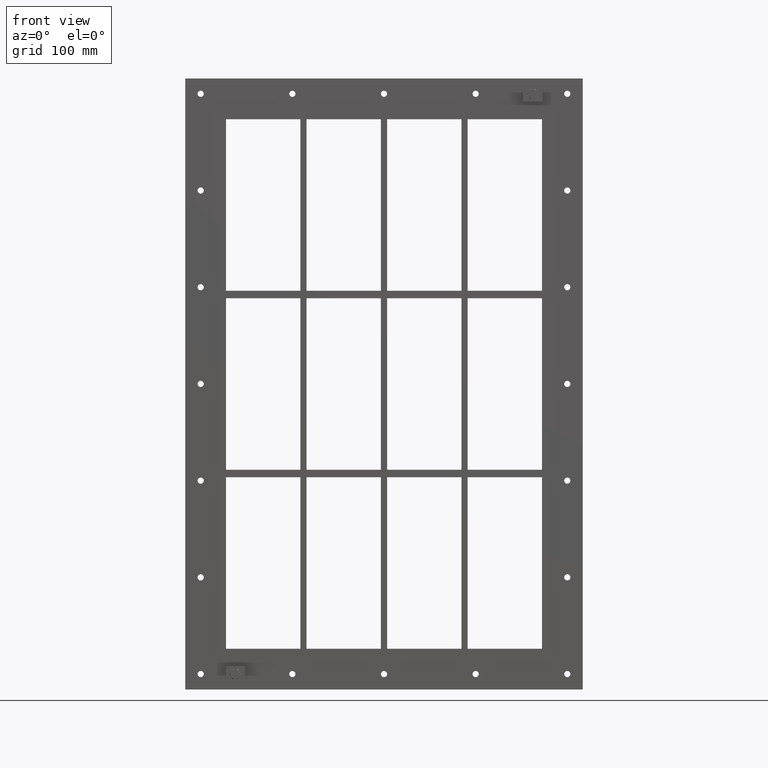
[diagram: clean part render]
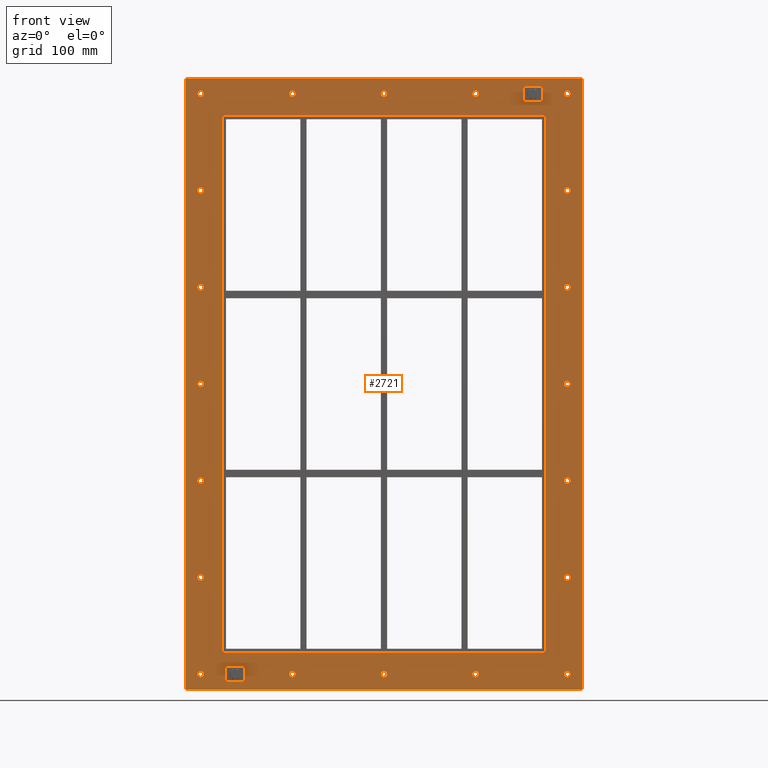
[diagram: same view with one face highlighted and labeled with its STEP entity id]
A machine part, front view. The second image highlights one B-rep face of the part: STEP entity #2721.
In plain terms, the highlighted planar face has unit normal (0, 1, 0).
Its self-contained STEP definition (entity closure, byte-faithful):
#84=CARTESIAN_POINT('',(-292.00000000000011,0.0,-470.00000000000011));
#85=VERTEX_POINT('',#84);
#86=CARTESIAN_POINT('',(-297.00000000000011,0.0,-470.00000000000011));
#87=DIRECTION('',(0.0,1.0,0.0));
#88=DIRECTION('',(1.0,0.0,0.0));
#89=AXIS2_PLACEMENT_3D('',#86,#87,#88);
#90=CIRCLE('',#89,5.0);
#91=EDGE_CURVE('',#85,#85,#90,.T.);
#112=CARTESIAN_POINT('',(301.99999999999994,0.0,-313.30000000000013));
#113=VERTEX_POINT('',#112);
#114=CARTESIAN_POINT('',(296.99999999999994,0.0,-313.30000000000013));
#115=DIRECTION('',(0.0,1.0,0.0));
#116=DIRECTION('',(1.0,0.0,0.0));
#117=AXIS2_PLACEMENT_3D('',#114,#115,#116);
#118=CIRCLE('',#117,5.0);
#119=EDGE_CURVE('',#113,#113,#118,.T.);
#140=CARTESIAN_POINT('',(-292.00000000000011,0.0,-313.30000000000013));
#141=VERTEX_POINT('',#140);
#142=CARTESIAN_POINT('',(-297.00000000000011,0.0,-313.30000000000013));
#143=DIRECTION('',(0.0,1.0,0.0));
#144=DIRECTION('',(1.0,0.0,0.0));
#145=AXIS2_PLACEMENT_3D('',#142,#143,#144);
#146=CIRCLE('',#145,5.0);
#147=EDGE_CURVE('',#141,#141,#146,.T.);
#168=CARTESIAN_POINT('',(301.99999999999994,0.0,-156.60000000000016));
#169=VERTEX_POINT('',#168);
#170=CARTESIAN_POINT('',(296.99999999999994,0.0,-156.60000000000016));
#171=DIRECTION('',(0.0,1.0,0.0));
#172=DIRECTION('',(1.0,0.0,0.0));
#173=AXIS2_PLACEMENT_3D('',#170,#171,#172);
#174=CIRCLE('',#173,5.0);
#175=EDGE_CURVE('',#169,#169,#174,.T.);
#196=CARTESIAN_POINT('',(-292.00000000000011,0.0,-156.60000000000016));
#197=VERTEX_POINT('',#196);
#198=CARTESIAN_POINT('',(-297.00000000000011,0.0,-156.60000000000016));
#199=DIRECTION('',(0.0,1.0,0.0));
#200=DIRECTION('',(1.0,0.0,0.0));
#201=AXIS2_PLACEMENT_3D('',#198,#199,#200);
#202=CIRCLE('',#201,5.0);
#203=EDGE_CURVE('',#197,#197,#202,.T.);
#224=CARTESIAN_POINT('',(301.99999999999994,0.0,0.099999999999856));
#225=VERTEX_POINT('',#224);
#226=CARTESIAN_POINT('',(296.99999999999994,0.0,0.099999999999856));
#227=DIRECTION('',(0.0,1.0,0.0));
#228=DIRECTION('',(1.0,0.0,0.0));
#229=AXIS2_PLACEMENT_3D('',#226,#227,#228);
#230=CIRCLE('',#229,5.0);
#231=EDGE_CURVE('',#225,#225,#230,.T.);
#252=CARTESIAN_POINT('',(-292.00000000000011,0.0,0.099999999999856));
#253=VERTEX_POINT('',#252);
#254=CARTESIAN_POINT('',(-297.00000000000011,0.0,0.099999999999856));
#255=DIRECTION('',(0.0,1.0,0.0));
#256=DIRECTION('',(1.0,0.0,0.0));
#257=AXIS2_PLACEMENT_3D('',#254,#255,#256);
#258=CIRCLE('',#257,5.0);
#259=EDGE_CURVE('',#253,#253,#258,.T.);
#280=CARTESIAN_POINT('',(301.99999999999994,0.0,156.79999999999981));
#281=VERTEX_POINT('',#280);
#282=CARTESIAN_POINT('',(296.99999999999994,0.0,156.79999999999981));
#283=DIRECTION('',(0.0,1.0,0.0));
#284=DIRECTION('',(1.0,0.0,0.0));
#285=AXIS2_PLACEMENT_3D('',#282,#283,#284);
#286=CIRCLE('',#285,5.0);
#287=EDGE_CURVE('',#281,#281,#286,.T.);
#308=CARTESIAN_POINT('',(-292.00000000000011,0.0,156.79999999999981));
#309=VERTEX_POINT('',#308);
#310=CARTESIAN_POINT('',(-297.00000000000011,0.0,156.79999999999981));
#311=DIRECTION('',(0.0,1.0,0.0));
#312=DIRECTION('',(1.0,0.0,0.0));
#313=AXIS2_PLACEMENT_3D('',#310,#311,#312);
#314=CIRCLE('',#313,5.0);
#315=EDGE_CURVE('',#309,#309,#314,.T.);
#336=CARTESIAN_POINT('',(301.99999999999994,0.0,313.49999999999977));
#337=VERTEX_POINT('',#336);
#338=CARTESIAN_POINT('',(296.99999999999994,0.0,313.49999999999977));
#339=DIRECTION('',(0.0,1.0,0.0));
#340=DIRECTION('',(1.0,0.0,0.0));
#341=AXIS2_PLACEMENT_3D('',#338,#339,#340);
#342=CIRCLE('',#341,5.0);
#343=EDGE_CURVE('',#337,#337,#342,.T.);
#364=CARTESIAN_POINT('',(-292.00000000000011,0.0,313.49999999999977));
#365=VERTEX_POINT('',#364);
#366=CARTESIAN_POINT('',(-297.00000000000011,0.0,313.49999999999977));
#367=DIRECTION('',(0.0,1.0,0.0));
#368=DIRECTION('',(1.0,0.0,0.0));
#369=AXIS2_PLACEMENT_3D('',#366,#367,#368);
#370=CIRCLE('',#369,5.0);
#371=EDGE_CURVE('',#365,#365,#370,.T.);
#392=CARTESIAN_POINT('',(-143.50000000000011,0.0,470.19999999999982));
#393=VERTEX_POINT('',#392);
#394=CARTESIAN_POINT('',(-148.50000000000011,0.0,470.19999999999982));
#395=DIRECTION('',(0.0,1.0,0.0));
#396=DIRECTION('',(1.0,0.0,0.0));
#397=AXIS2_PLACEMENT_3D('',#394,#395,#396);
#398=CIRCLE('',#397,5.0);
#399=EDGE_CURVE('',#393,#393,#398,.T.);
#420=CARTESIAN_POINT('',(-143.50000000000017,0.0,-470.00000000000011));
#421=VERTEX_POINT('',#420);
#422=CARTESIAN_POINT('',(-148.50000000000017,0.0,-470.00000000000011));
#423=DIRECTION('',(0.0,1.0,0.0));
#424=DIRECTION('',(1.0,0.0,0.0));
#425=AXIS2_PLACEMENT_3D('',#422,#423,#424);
#426=CIRCLE('',#425,5.0);
#427=EDGE_CURVE('',#421,#421,#426,.T.);
#448=CARTESIAN_POINT('',(4.999999999999893,0.0,470.19999999999982));
#449=VERTEX_POINT('',#448);
#450=CARTESIAN_POINT('',(-1.065814E-013,0.0,470.19999999999982));
#451=DIRECTION('',(0.0,1.0,0.0));
#452=DIRECTION('',(1.0,0.0,0.0));
#453=AXIS2_PLACEMENT_3D('',#450,#451,#452);
#454=CIRCLE('',#453,5.0);
#455=EDGE_CURVE('',#449,#449,#454,.T.);
#476=CARTESIAN_POINT('',(4.999999999999858,0.0,-470.00000000000011));
#477=VERTEX_POINT('',#476);
#478=CARTESIAN_POINT('',(-1.421085E-013,0.0,-470.00000000000011));
#479=DIRECTION('',(0.0,1.0,0.0));
#480=DIRECTION('',(1.0,0.0,0.0));
#481=AXIS2_PLACEMENT_3D('',#478,#479,#480);
#482=CIRCLE('',#481,5.0);
#483=EDGE_CURVE('',#477,#477,#482,.T.);
#504=CARTESIAN_POINT('',(153.49999999999991,0.0,470.19999999999982));
#505=VERTEX_POINT('',#504);
#506=CARTESIAN_POINT('',(148.49999999999991,0.0,470.19999999999982));
#507=DIRECTION('',(0.0,1.0,0.0));
#508=DIRECTION('',(1.0,0.0,0.0));
#509=AXIS2_PLACEMENT_3D('',#506,#507,#508);
#510=CIRCLE('',#509,5.0);
#511=EDGE_CURVE('',#505,#505,#510,.T.);
#532=CARTESIAN_POINT('',(153.49999999999989,0.0,-470.00000000000011));
#533=VERTEX_POINT('',#532);
#534=CARTESIAN_POINT('',(148.49999999999989,0.0,-470.00000000000011));
#535=DIRECTION('',(0.0,1.0,0.0));
#536=DIRECTION('',(1.0,0.0,0.0));
#537=AXIS2_PLACEMENT_3D('',#534,#535,#536);
#538=CIRCLE('',#537,5.0);
#539=EDGE_CURVE('',#533,#533,#538,.T.);
#560=CARTESIAN_POINT('',(301.99999999999989,0.0,-470.00000000000011));
#561=VERTEX_POINT('',#560);
#562=CARTESIAN_POINT('',(296.99999999999989,0.0,-470.00000000000011));
#563=DIRECTION('',(0.0,1.0,0.0));
#564=DIRECTION('',(1.0,0.0,0.0));
#565=AXIS2_PLACEMENT_3D('',#562,#563,#564);
#566=CIRCLE('',#565,5.0);
#567=EDGE_CURVE('',#561,#561,#566,.T.);
#588=CARTESIAN_POINT('',(-292.00000000000011,0.0,470.19999999999982));
#589=VERTEX_POINT('',#588);
#590=CARTESIAN_POINT('',(-297.00000000000011,0.0,470.19999999999982));
#591=DIRECTION('',(0.0,1.0,0.0));
#592=DIRECTION('',(1.0,0.0,0.0));
#593=AXIS2_PLACEMENT_3D('',#590,#591,#592);
#594=CIRCLE('',#593,5.0);
#595=EDGE_CURVE('',#589,#589,#594,.T.);
#616=CARTESIAN_POINT('',(301.99999999999994,0.0,470.19999999999982));
#617=VERTEX_POINT('',#616);
#618=CARTESIAN_POINT('',(296.99999999999994,0.0,470.19999999999982));
#619=DIRECTION('',(0.0,1.0,0.0));
#620=DIRECTION('',(1.0,0.0,0.0));
#621=AXIS2_PLACEMENT_3D('',#618,#619,#620);
#622=CIRCLE('',#621,5.0);
#623=EDGE_CURVE('',#617,#617,#622,.T.);
#2552=CARTESIAN_POINT('',(-2.087274E-014,0.0,0.0));
#2553=DIRECTION('',(0.0,1.0,0.0));
#2554=DIRECTION('',(0.0,0.0,1.0));
#2555=AXIS2_PLACEMENT_3D('',#2552,#2553,#2554);
#2556=PLANE('',#2555);
#2557=CARTESIAN_POINT('',(-322.0,0.0,495.00000000000006));
#2558=VERTEX_POINT('',#2557);
#2559=CARTESIAN_POINT('',(321.99999999999994,0.0,495.00000000000006));
#2560=VERTEX_POINT('',#2559);
#2561=CARTESIAN_POINT('',(-322.0,0.0,495.00000000000006));
#2562=DIRECTION('',(1.0,0.0,0.0));
#2563=VECTOR('',#2562,644.0);
#2564=LINE('',#2561,#2563);
#2565=EDGE_CURVE('',#2558,#2560,#2564,.T.);
#2566=ORIENTED_EDGE('',*,*,#2565,.F.);
#2567=CARTESIAN_POINT('',(-322.0,0.0,-495.00000000000006));
#2568=VERTEX_POINT('',#2567);
#2569=CARTESIAN_POINT('',(-322.0,0.0,-495.00000000000006));
#2570=DIRECTION('',(0.0,0.0,1.0));
#2571=VECTOR('',#2570,990.00000000000011);
#2572=LINE('',#2569,#2571);
#2573=EDGE_CURVE('',#2568,#2558,#2572,.T.);
#2574=ORIENTED_EDGE('',*,*,#2573,.F.);
#2575=CARTESIAN_POINT('',(321.99999999999994,0.0,-495.00000000000006));
#2576=VERTEX_POINT('',#2575);
#2577=CARTESIAN_POINT('',(321.99999999999994,0.0,-495.00000000000006));
#2578=DIRECTION('',(-1.0,0.0,0.0));
#2579=VECTOR('',#2578,644.0);
#2580=LINE('',#2577,#2579);
#2581=EDGE_CURVE('',#2576,#2568,#2580,.T.);
#2582=ORIENTED_EDGE('',*,*,#2581,.F.);
#2583=CARTESIAN_POINT('',(321.99999999999994,0.0,495.00000000000006));
#2584=DIRECTION('',(0.0,0.0,-1.0));
#2585=VECTOR('',#2584,990.00000000000011);
#2586=LINE('',#2583,#2585);
#2587=EDGE_CURVE('',#2560,#2576,#2586,.T.);
#2588=ORIENTED_EDGE('',*,*,#2587,.F.);
#2589=EDGE_LOOP('',(#2566,#2574,#2582,#2588));
#2590=FACE_OUTER_BOUND('',#2589,.T.);
#2591=ORIENTED_EDGE('',*,*,#91,.T.);
#2592=EDGE_LOOP('',(#2591));
#2593=FACE_BOUND('',#2592,.T.);
#2594=ORIENTED_EDGE('',*,*,#119,.T.);
#2595=EDGE_LOOP('',(#2594));
#2596=FACE_BOUND('',#2595,.T.);
#2597=ORIENTED_EDGE('',*,*,#147,.T.);
#2598=EDGE_LOOP('',(#2597));
#2599=FACE_BOUND('',#2598,.T.);
#2600=ORIENTED_EDGE('',*,*,#175,.T.);
#2601=EDGE_LOOP('',(#2600));
#2602=FACE_BOUND('',#2601,.T.);
#2603=ORIENTED_EDGE('',*,*,#203,.T.);
#2604=EDGE_LOOP('',(#2603));
#2605=FACE_BOUND('',#2604,.T.);
#2606=ORIENTED_EDGE('',*,*,#231,.T.);
#2607=EDGE_LOOP('',(#2606));
#2608=FACE_BOUND('',#2607,.T.);
#2609=ORIENTED_EDGE('',*,*,#259,.T.);
#2610=EDGE_LOOP('',(#2609));
#2611=FACE_BOUND('',#2610,.T.);
#2612=ORIENTED_EDGE('',*,*,#287,.T.);
#2613=EDGE_LOOP('',(#2612));
#2614=FACE_BOUND('',#2613,.T.);
#2615=ORIENTED_EDGE('',*,*,#315,.T.);
#2616=EDGE_LOOP('',(#2615));
#2617=FACE_BOUND('',#2616,.T.);
#2618=ORIENTED_EDGE('',*,*,#343,.T.);
#2619=EDGE_LOOP('',(#2618));
#2620=FACE_BOUND('',#2619,.T.);
#2621=ORIENTED_EDGE('',*,*,#371,.T.);
#2622=EDGE_LOOP('',(#2621));
#2623=FACE_BOUND('',#2622,.T.);
#2624=ORIENTED_EDGE('',*,*,#399,.T.);
#2625=EDGE_LOOP('',(#2624));
#2626=FACE_BOUND('',#2625,.T.);
#2627=ORIENTED_EDGE('',*,*,#427,.T.);
#2628=EDGE_LOOP('',(#2627));
#2629=FACE_BOUND('',#2628,.T.);
#2630=ORIENTED_EDGE('',*,*,#455,.T.);
#2631=EDGE_LOOP('',(#2630));
#2632=FACE_BOUND('',#2631,.T.);
#2633=ORIENTED_EDGE('',*,*,#483,.T.);
#2634=EDGE_LOOP('',(#2633));
#2635=FACE_BOUND('',#2634,.T.);
#2636=ORIENTED_EDGE('',*,*,#511,.T.);
#2637=EDGE_LOOP('',(#2636));
#2638=FACE_BOUND('',#2637,.T.);
#2639=ORIENTED_EDGE('',*,*,#539,.T.);
#2640=EDGE_LOOP('',(#2639));
#2641=FACE_BOUND('',#2640,.T.);
#2642=ORIENTED_EDGE('',*,*,#567,.T.);
#2643=EDGE_LOOP('',(#2642));
#2644=FACE_BOUND('',#2643,.T.);
#2645=ORIENTED_EDGE('',*,*,#595,.T.);
#2646=EDGE_LOOP('',(#2645));
#2647=FACE_BOUND('',#2646,.T.);
#2648=ORIENTED_EDGE('',*,*,#623,.T.);
#2649=EDGE_LOOP('',(#2648));
#2650=FACE_BOUND('',#2649,.T.);
#2651=CARTESIAN_POINT('',(-260.0,0.0,435.0));
#2652=VERTEX_POINT('',#2651);
#2653=CARTESIAN_POINT('',(-262.0,0.0,433.0));
#2654=VERTEX_POINT('',#2653);
#2655=CARTESIAN_POINT('',(-260.0,0.0,433.0));
#2656=DIRECTION('',(0.0,-1.0,0.0));
#2657=DIRECTION('',(-0.707106781186548,0.0,0.707106781186548));
#2658=AXIS2_PLACEMENT_3D('',#2655,#2656,#2657);
#2659=CIRCLE('',#2658,2.0);
#2660=EDGE_CURVE('',#2652,#2654,#2659,.T.);
#2661=ORIENTED_EDGE('',*,*,#2660,.F.);
#2662=CARTESIAN_POINT('',(260.0,0.0,435.0));
#2663=VERTEX_POINT('',#2662);
#2664=CARTESIAN_POINT('',(260.0,0.0,435.0));
#2665=DIRECTION('',(-1.0,0.0,0.0));
#2666=VECTOR('',#2665,520.0);
#2667=LINE('',#2664,#2666);
#2668=EDGE_CURVE('',#2663,#2652,#2667,.T.);
#2669=ORIENTED_EDGE('',*,*,#2668,.F.);
#2670=CARTESIAN_POINT('',(262.0,0.0,433.0));
#2671=VERTEX_POINT('',#2670);
#2672=CARTESIAN_POINT('',(260.0,0.0,433.0));
#2673=DIRECTION('',(0.0,-1.0,0.0));
#2674=DIRECTION('',(0.707106781186548,0.0,0.707106781186548));
#2675=AXIS2_PLACEMENT_3D('',#2672,#2673,#2674);
#2676=CIRCLE('',#2675,2.0);
#2677=EDGE_CURVE('',#2671,#2663,#2676,.T.);
#2678=ORIENTED_EDGE('',*,*,#2677,.F.);
#2679=CARTESIAN_POINT('',(262.0,0.0,-433.00000000000011));
#2680=VERTEX_POINT('',#2679);
#2681=CARTESIAN_POINT('',(262.0,0.0,-433.00000000000011));
#2682=DIRECTION('',(0.0,0.0,1.0));
#2683=VECTOR('',#2682,866.00000000000011);
#2684=LINE('',#2681,#2683);
#2685=EDGE_CURVE('',#2680,#2671,#2684,.T.);
#2686=ORIENTED_EDGE('',*,*,#2685,.F.);
#2687=CARTESIAN_POINT('',(260.0,0.0,-435.00000000000011));
#2688=VERTEX_POINT('',#2687);
#2689=CARTESIAN_POINT('',(260.0,0.0,-433.00000000000011));
#2690=DIRECTION('',(0.0,-1.0,0.0));
#2691=DIRECTION('',(0.707106781186548,0.0,-0.707106781186548));
#2692=AXIS2_PLACEMENT_3D('',#2689,#2690,#2691);
#2693=CIRCLE('',#2692,2.0);
#2694=EDGE_CURVE('',#2688,#2680,#2693,.T.);
#2695=ORIENTED_EDGE('',*,*,#2694,.F.);
#2696=CARTESIAN_POINT('',(-260.0,0.0,-435.00000000000011));
#2697=VERTEX_POINT('',#2696);
#2698=CARTESIAN_POINT('',(-260.0,0.0,-435.00000000000011));
#2699=DIRECTION('',(1.0,0.0,0.0));
#2700=VECTOR('',#2699,520.0);
#2701=LINE('',#2698,#2700);
#2702=EDGE_CURVE('',#2697,#2688,#2701,.T.);
#2703=ORIENTED_EDGE('',*,*,#2702,.F.);
#2704=CARTESIAN_POINT('',(-262.0,0.0,-433.00000000000011));
#2705=VERTEX_POINT('',#2704);
#2706=CARTESIAN_POINT('',(-260.0,0.0,-433.00000000000011));
#2707=DIRECTION('',(0.0,-1.0,0.0));
#2708=DIRECTION('',(-0.707106781186548,0.0,-0.707106781186548));
#2709=AXIS2_PLACEMENT_3D('',#2706,#2707,#2708);
#2710=CIRCLE('',#2709,2.0);
#2711=EDGE_CURVE('',#2705,#2697,#2710,.T.);
#2712=ORIENTED_EDGE('',*,*,#2711,.F.);
#2713=CARTESIAN_POINT('',(-262.0,0.0,433.00000000000006));
#2714=DIRECTION('',(0.0,0.0,-1.0));
#2715=VECTOR('',#2714,866.00000000000023);
#2716=LINE('',#2713,#2715);
#2717=EDGE_CURVE('',#2654,#2705,#2716,.T.);
#2718=ORIENTED_EDGE('',*,*,#2717,.F.);
#2719=EDGE_LOOP('',(#2661,#2669,#2678,#2686,#2695,#2703,#2712,#2718));
#2720=FACE_BOUND('',#2719,.T.);
#2721=ADVANCED_FACE('',(#2590,#2593,#2596,#2599,#2602,#2605,#2608,#2611,#2614,#2617,#2620,#2623,#2626,#2629,#2632,#2635,#2638,#2641,#2644,#2647,#2650,#2720),#2556,.F.);